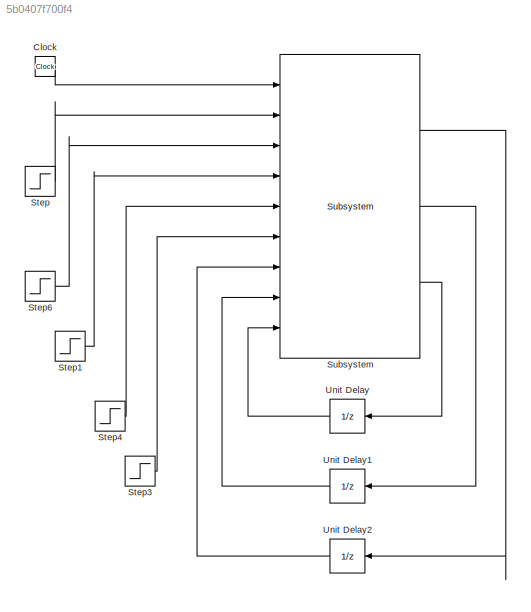
MODEL slx_5b0407f700f4
KIND model
CONFIG AbsTol = auto
CONFIG EnableMultiTasking = on
CONFIG FixedStep = Tsa
CONFIG MaxStep = auto
CONFIG MinStep = auto
CONFIG RelTol = 1e-3
CONFIG SampleTimeConstraint = Unconstrained
CONFIG Solver = FixedStepAuto
CONFIG SolverName = FixedStepAuto
CONFIG StartTime = 0.0
CONFIG StopTime = inf
BLOCK [Clock] Clock
BLOCK [Step] Step
  After = 20
  SampleTime = 0
BLOCK [Step] Step1
  SampleTime = 0
BLOCK [Step] Step3
  After = 50
  SampleTime = 0
BLOCK [Step] Step4
  After = 40
  SampleTime = 0
BLOCK [Step] Step6
  After = 30
  SampleTime = 0
BLOCK [Reference] Subsystem  REF=EEE481Arduino/Subsystem
  Ports = [9, 3]
  SourceBlock = EEE481Arduino/Subsystem
BLOCK [UnitDelay] Unit Delay
  InputProcessing = Elements as channels (sample based)
  SampleTime = -1
BLOCK [UnitDelay] Unit Delay1
  InputProcessing = Elements as channels (sample based)
  SampleTime = -1
BLOCK [UnitDelay] Unit Delay2
  InputProcessing = Elements as channels (sample based)
  SampleTime = -1
LINE Clock:1 -> Subsystem:1
LINE Step1:1 -> Subsystem:4
LINE Step3:1 -> Subsystem:6
LINE Step4:1 -> Subsystem:5
LINE Step6:1 -> Subsystem:3
LINE Step:1 -> Subsystem:2
LINE Subsystem:1 -> Unit Delay2:1
LINE Subsystem:2 -> Unit Delay1:1
LINE Subsystem:3 -> Unit Delay:1
LINE Unit Delay1:1 -> Subsystem:8
LINE Unit Delay2:1 -> Subsystem:7
LINE Unit Delay:1 -> Subsystem:9
